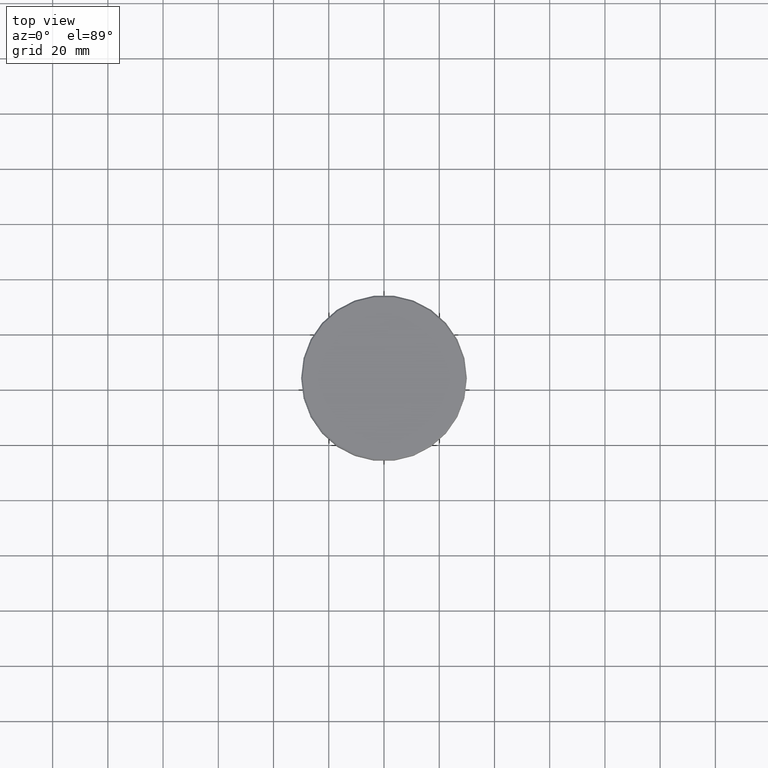
[diagram: clean part render]
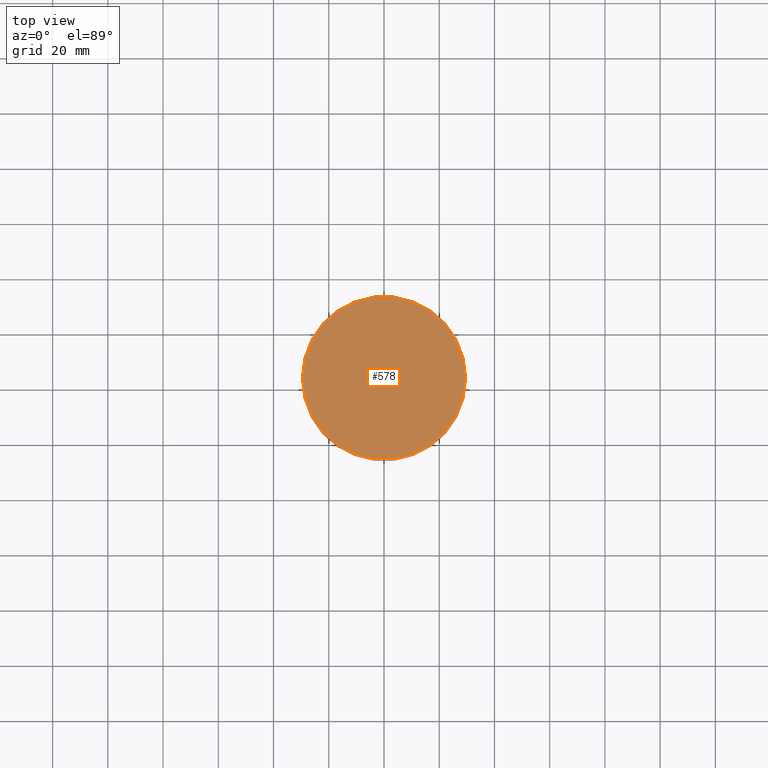
[diagram: same view with one face highlighted and labeled with its STEP entity id]
A machine part, top view. The second image highlights one B-rep face of the part: STEP entity #578.
In plain terms, the highlighted planar face has unit normal (0, -0, 1).
Its self-contained STEP definition (entity closure, byte-faithful):
#4 = CARTESIAN_POINT ( 'NONE',  ( 0.000000000000000000, 0.000000000000000000, 0.000000000000000000 ) ) ;
#33 = FACE_OUTER_BOUND ( 'NONE', #160, .T. ) ;
#66 = CARTESIAN_POINT ( 'NONE',  ( 0.000000000000000000, 0.000000000000000000, 0.000000000000000000 ) ) ;
#91 = ORIENTED_EDGE ( 'NONE', *, *, #678, .T. ) ;
#128 = DIRECTION ( 'NONE',  ( 0.000000000000000000, -0.000000000000000000, 1.000000000000000000 ) ) ;
#160 = EDGE_LOOP ( 'NONE', ( #91, #751 ) ) ;
#191 = EDGE_CURVE ( 'NONE', #1128, #946, #427, .T. ) ;
#324 = CARTESIAN_POINT ( 'NONE',  ( 0.000000000000000000, 0.000000000000000000, 0.000000000000000000 ) ) ;
#370 = CARTESIAN_POINT ( 'NONE',  ( -29.50000000000000000, 0.000000000000000000, 0.000000000000000000 ) ) ;
#389 = DIRECTION ( 'NONE',  ( 1.000000000000000000, 0.000000000000000000, 0.000000000000000000 ) ) ;
#427 = CIRCLE ( 'NONE', #1045, 29.50000000000000000 ) ;
#578 = ADVANCED_FACE ( 'NONE', ( #33 ), #771, .T. ) ;
#674 = DIRECTION ( 'NONE',  ( -0.000000000000000000, -0.000000000000000000, 1.000000000000000000 ) ) ;
#678 = EDGE_CURVE ( 'NONE', #946, #1128, #1067, .T. ) ;
#684 = CARTESIAN_POINT ( 'NONE',  ( 29.50000000000000000, 3.643324227463375391E-15, 0.000000000000000000 ) ) ;
#711 = DIRECTION ( 'NONE',  ( -0.000000000000000000, -0.000000000000000000, 1.000000000000000000 ) ) ;
#751 = ORIENTED_EDGE ( 'NONE', *, *, #191, .T. ) ;
#770 = AXIS2_PLACEMENT_3D ( 'NONE', #324, #128, #389 ) ;
#771 = PLANE ( 'NONE',  #770 ) ;
#942 = DIRECTION ( 'NONE',  ( 1.000000000000000000, 0.000000000000000000, 0.000000000000000000 ) ) ;
#946 = VERTEX_POINT ( 'NONE', #370 ) ;
#1011 = AXIS2_PLACEMENT_3D ( 'NONE', #4, #674, #942 ) ;
#1045 = AXIS2_PLACEMENT_3D ( 'NONE', #66, #711, #1063 ) ;
#1063 = DIRECTION ( 'NONE',  ( 1.000000000000000000, 0.000000000000000000, 0.000000000000000000 ) ) ;
#1067 = CIRCLE ( 'NONE', #1011, 29.50000000000000000 ) ;
#1128 = VERTEX_POINT ( 'NONE', #684 ) ;